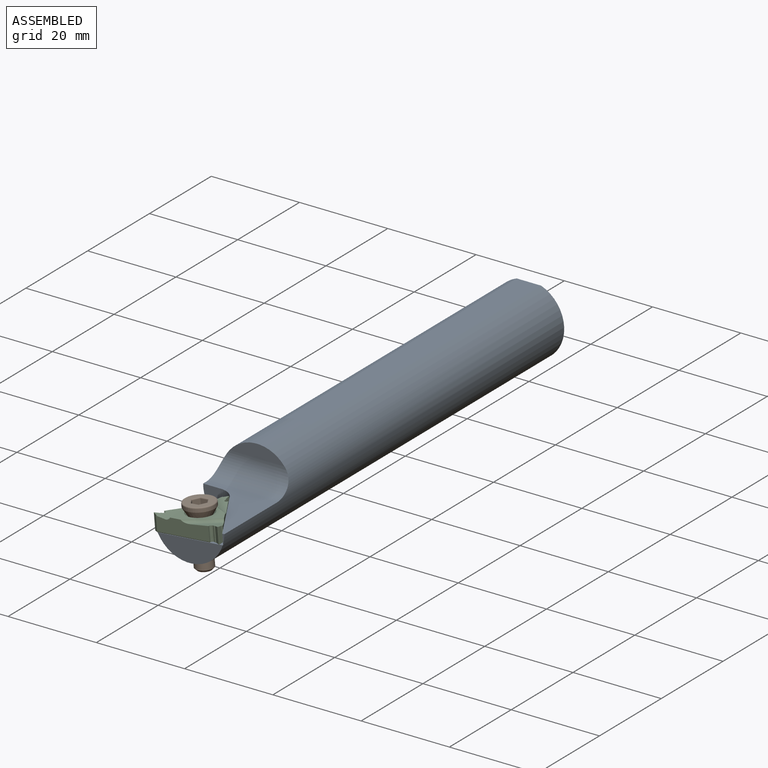
[diagram: assembled view]
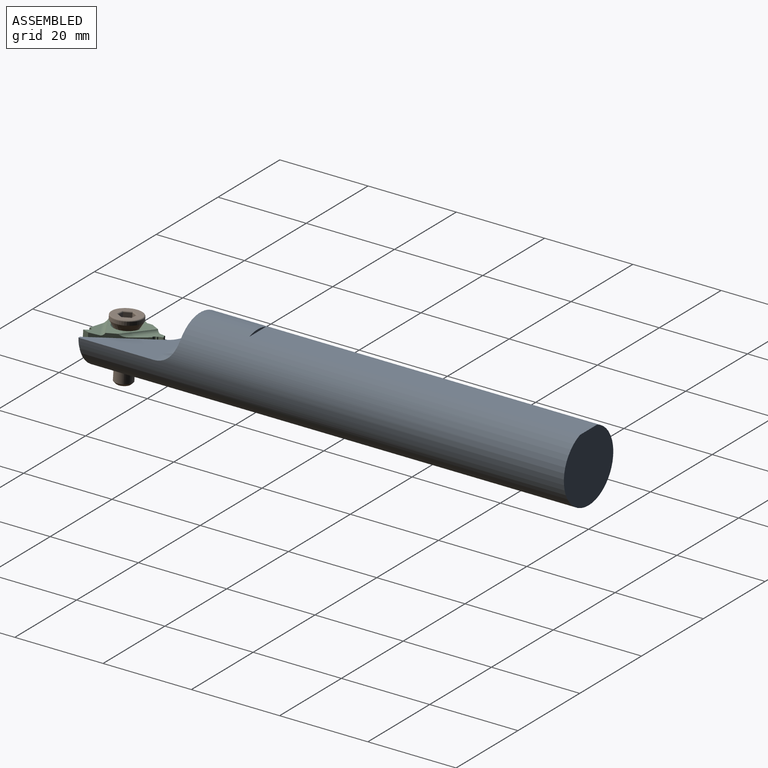
[diagram: assembled view, second angle]
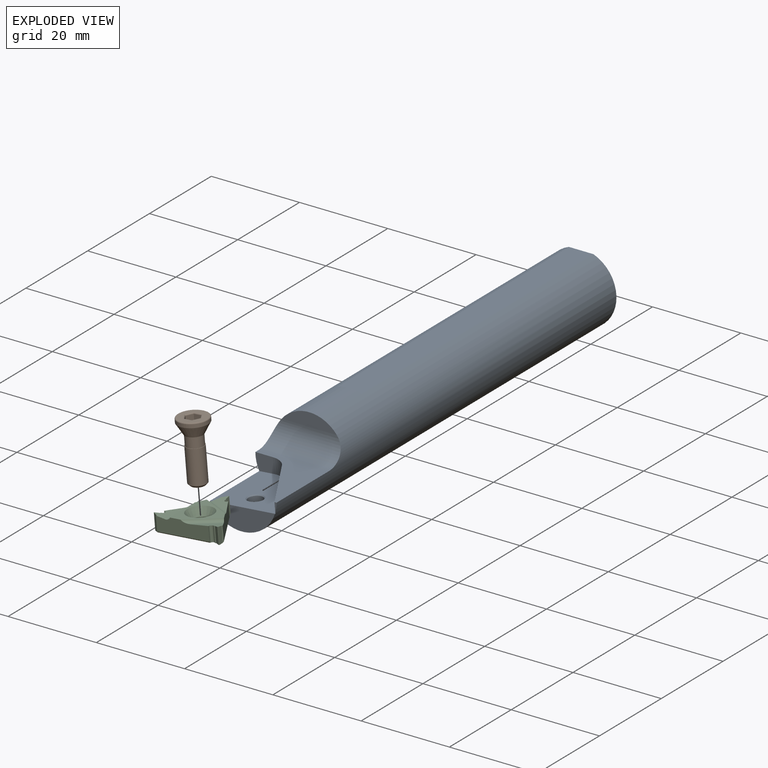
[diagram: exploded view]
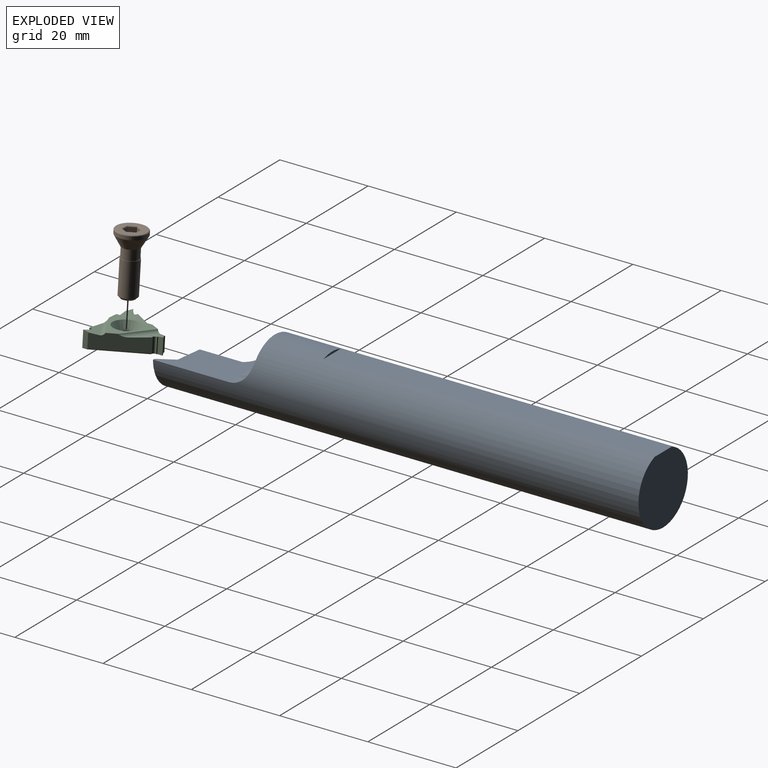
[diagram: exploded view, second angle]
ASSEMBLY  parts=3 mates=4
PART A: 15 faces, bbox 16x110x16.2 mm
  f0: cylinder r=8mm len=110mm, axis (0,1,0), area 4491.2mm2, adj f1,f2,f3,f4,f5,f6,f7,f8
  f1: plane 2.12x0.47mm, normal (0,-1,0), area 0.6mm2, adj f0,f3,f10
  f2: plane 14.75x5.63mm, normal (0,-1,0), area 53.2mm2, adj f0,f9
  f3: plane 17.05x16.05mm, normal (0,0,1), area 98.6mm2, adj f0,f1,f6,f10,f11,f12
  f4: plane 16x15.5mm, normal (0,1,0), area 199.2mm2, adj f0,f8
  f5: plane 12.49x3mm, normal (0,-1,0), area 26.1mm2, adj f0,f6
  f6: cylinder r=5mm len=16mm, axis (1,0,0), area 119.7mm2, adj f0,f3,f5
  f7: plane 5.57x0.5mm, normal (0,1,0), area 1.9mm2, adj f0,f8
  f8: plane 75x5.57mm, normal (0,0,1), area 417.6mm2, adj f0,f4,f7
  f9: plane 16x14.75mm, normal (-0.09,0,1), area 152.9mm2, adj f0,f2,f10,f11,f12,f14
  f10: plane 14x8.3mm, normal (-0.86,-0.5,-0.08), area 44.1mm2, adj f0,f1,f3,f9,f12
  f11: plane 4.23x3.66mm, normal (0,-1,0), area 13.5mm2, adj f0,f3,f9,f12
  f12: cylinder r=4mm len=3.75mm, axis (0.09,0,-1), area 13.5mm2, adj f3,f9,f10,f11
  f13: cylinder r=1.65mm len=5.04mm, axis (-0.09,0,1), area 48.5mm2, adj f0,f14
  f14: cone r=1.65mm half-angle=45deg, axis (-0.09,0,1), area 3.1mm2, adj f9,f13
PART B: 23 faces, bbox 7.4x7.4x13.7 mm
  f0: plane 6.3x6.3mm, normal (0,0,1), area 20.6mm2, adj f16,f17,f18,f19,f20,f21,f22
  f1: cylinder r=3.4mm len=6.8mm, axis (0,0,-1), area 16mm2, adj f2,f16
  f2: cone r=2mm half-angle=30deg, axis (0,0,1), area 47.5mm2, adj f1,f3
  f3: plane 4x4mm, normal (0,0,-1), area 1.2mm2, adj f2,f4
  f4: cylinder r=1.9mm len=3.8mm, axis (0,0,1), area 27.5mm2, adj f3,f7
  f5: cylinder r=2mm len=7.5mm, axis (0,0,1), area 94.2mm2, adj f7,f8
  f6: plane 3x3mm, normal (0,0,-1), area 7.1mm2, adj f8
  f7: plane 4x4mm, normal (0,0,1), area 1.2mm2, adj f4,f5
  f8: cone r=1.5mm half-angle=45deg, axis (0,0,1), area 7.8mm2, adj f5,f6
  f9: plane 2.25x1.5mm, normal (-0.87,0.5,0), area 3.9mm2, adj f10,f14,f15,f20
  f10: plane 2.25x1.73mm, normal (0,1,0), area 3.9mm2, adj f9,f11,f15,f18
  f11: plane 2.25x1.5mm, normal (0.87,0.5,0), area 3.9mm2, adj f10,f12,f15,f17
  f12: plane 2.25x1.5mm, normal (0.87,-0.5,0), area 3.9mm2, adj f11,f13,f15,f19
  f13: plane 2.25x1.73mm, normal (0,-1,0), area 3.9mm2, adj f12,f14,f15,f21
  f14: plane 2.25x1.5mm, normal (-0.87,-0.5,0), area 3.9mm2, adj f9,f13,f15,f22
  f15: plane 3.46x3mm, normal (0,0,1), area 7.8mm2, adj f9,f10,f11,f12,f13,f14
  f16: torus R=3.15mm, axis (0,0,1), area 8.2mm2, adj f0,f1
  f17: cylinder r=0.25mm len=1.88mm, axis (-0.5,0.87,0), area 0.7mm2, adj f0,f11,f18,f19
  f18: cylinder r=0.25mm len=2.02mm, axis (-1,0,0), area 0.7mm2, adj f0,f10,f17,f20
  f19: cylinder r=0.25mm len=1.88mm, axis (0.5,0.87,0), area 0.7mm2, adj f0,f12,f17,f21
  f20: cylinder r=0.25mm len=1.88mm, axis (-0.5,-0.87,0), area 0.7mm2, adj f0,f9,f18,f22
  f21: cylinder r=0.25mm len=2.02mm, axis (1,0,0), area 0.7mm2, adj f0,f13,f19,f22
  f22: cylinder r=0.25mm len=1.88mm, axis (0.5,-0.87,0), area 0.7mm2, adj f0,f14,f20,f21
PART C: 35 faces, bbox 15.3x14.4x3.6 mm
  f0: plane 10.35x5.98mm, normal (0.87,0.5,0), area 36.7mm2, adj f1,f12,f19,f25,f26,f29,f30,f32
  f1: plane 10.22x9.45mm, normal (0,0,1), area 32.2mm2, adj f0,f2,f3,f6,f26,f28,f30
  f2: plane 11.96x3.38mm, normal (0,-1,0), area 36.7mm2, adj f1,f13,f24,f27,f28,f29,f30,f31
  f3: plane 10.35x5.98mm, normal (-0.87,0.5,0), area 36.7mm2, adj f1,f7,f18,f25,f26,f27,f28,f33
  f4: plane 15.07x13.46mm, normal (0,0,-1), area 90.4mm2, adj f8,f9,f10,f11,f12,f14,f15,f16
  f5: cylinder r=1.97mm len=3.94mm, axis (0,0,-1), area 21.6mm2, adj f6,f34
  f6: cone r=3mm half-angle=30deg, axis (0,0,1), area 32.2mm2, adj f1,f5
  f7: plane 3.4x0.17mm, normal (0.5,0.87,0), area 0.7mm2, adj f3,f8,f25,f33
  f8: plane 3.63x1mm, normal (-0.5,0.87,0), area 4.1mm2, adj f4,f7,f9,f25,f33
  f9: plane 3.63x0.07mm, normal (0.5,0.87,0), area 0.3mm2, adj f4,f8,f10,f25
  f10: plane 3.63x1.15mm, normal (1,0,0), area 4.1mm2, adj f4,f9,f11,f25
  f11: plane 3.45x0.17mm, normal (0.5,0.87,0), area 0.7mm2, adj f4,f10,f12,f25
  f12: cylinder r=0.5mm len=3.45mm, axis (0,0,1), area 5.2mm2, adj f0,f4,f11,f25,f32
  f13: plane 3.4x0.2mm, normal (-1,0,0), area 0.7mm2, adj f2,f14,f27,f31
  f14: plane 3.63x1mm, normal (-0.5,-0.87,0), area 4.1mm2, adj f4,f13,f15,f27,f31
  f15: plane 3.63x0.08mm, normal (-1,0,0), area 0.3mm2, adj f4,f14,f16,f27
  f16: plane 3.63x1mm, normal (-0.5,0.87,0), area 4.1mm2, adj f4,f15,f17,f27
  f17: plane 3.45x0.2mm, normal (-1,0,0), area 0.7mm2, adj f4,f16,f18,f27
  f18: cylinder r=0.5mm len=3.45mm, axis (0,0,1), area 5.2mm2, adj f3,f4,f17,f27,f33
  f19: plane 3.4x0.17mm, normal (0.5,-0.87,0), area 0.7mm2, adj f0,f20,f29,f32
  f20: plane 3.63x1.15mm, normal (1,0,0), area 4.1mm2, adj f4,f19,f21,f29,f32
  f21: plane 3.63x0.07mm, normal (0.5,-0.87,0), area 0.3mm2, adj f4,f20,f22,f29
  f22: plane 3.63x1mm, normal (-0.5,-0.87,0), area 4.1mm2, adj f4,f21,f23,f29
  f23: plane 3.45x0.17mm, normal (0.5,-0.87,0), area 0.7mm2, adj f4,f22,f24,f29
  f24: cylinder r=0.5mm len=3.45mm, axis (0,0,1), area 5.2mm2, adj f2,f4,f23,f29,f31
  f25: plane 5.46x5.44mm, normal (-0.09,-0.15,0.98), area 9.8mm2, adj f0,f3,f7,f8,f9,f10,f11,f12
  f26: cylinder r=1mm len=7.59mm, axis (-0.87,0.5,0), area 9.5mm2, adj f0,f1,f3,f25
  f27: plane 6.28x3.13mm, normal (0.17,0,0.98), area 9.8mm2, adj f2,f3,f13,f14,f15,f16,f17,f18
  f28: cylinder r=1mm len=8.14mm, axis (0,-1,0), area 9.5mm2, adj f1,f2,f3,f27
  f29: plane 6.5x3.14mm, normal (-0.09,0.15,0.98), area 9.8mm2, adj f0,f2,f19,f20,f21,f22,f23,f24
  f30: cylinder r=1mm len=7.59mm, axis (0.87,0.5,0), area 9.5mm2, adj f0,f1,f2,f29
  f31: plane 12.05x0.26mm, normal (0,-0.71,-0.71), area 4.2mm2, adj f2,f4,f13,f14,f24
  f32: plane 10.56x6.17mm, normal (0.61,0.35,-0.71), area 4.2mm2, adj f0,f4,f12,f19,f20
  f33: plane 10.44x6.25mm, normal (-0.61,0.35,-0.71), area 4.2mm2, adj f3,f4,f7,f8,f18
  f34: cone r=1.97mm half-angle=45deg, axis (0,0,-1), area 1.8mm2, adj f4,f5
PLACE A at identity
PLACE B rot(axis=(0,-1,0),5deg) t=(-19.15,-142.21,-24.26)mm
PLACE C rot(axis=(0,-1,0),5deg) t=(-0.79,-105.24,0.43)mm
MATE planar C.f2 <-> A.f2  axis (0,-1,0) through (-1.42,-110,-1.47)mm
MATE planar C.f5 <-> A.f9  axis (0.09,0,-1) through (-0.48,-105.24,-3.08)mm
MATE planar C.f0 <-> A.f10  axis (0.86,0.5,0.08) through (3.88,-103.55,-1)mm
MATE fastened B.f1 <-> C.f6  axis (-0.09,0,1) through (-0.79,-105.24,0.43)mm
